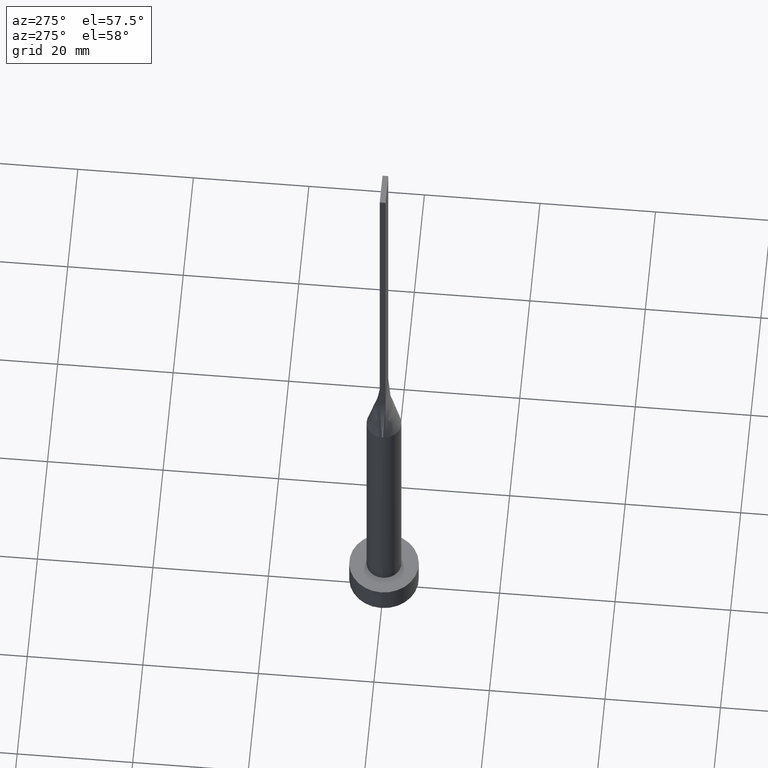
[diagram: clean part render]
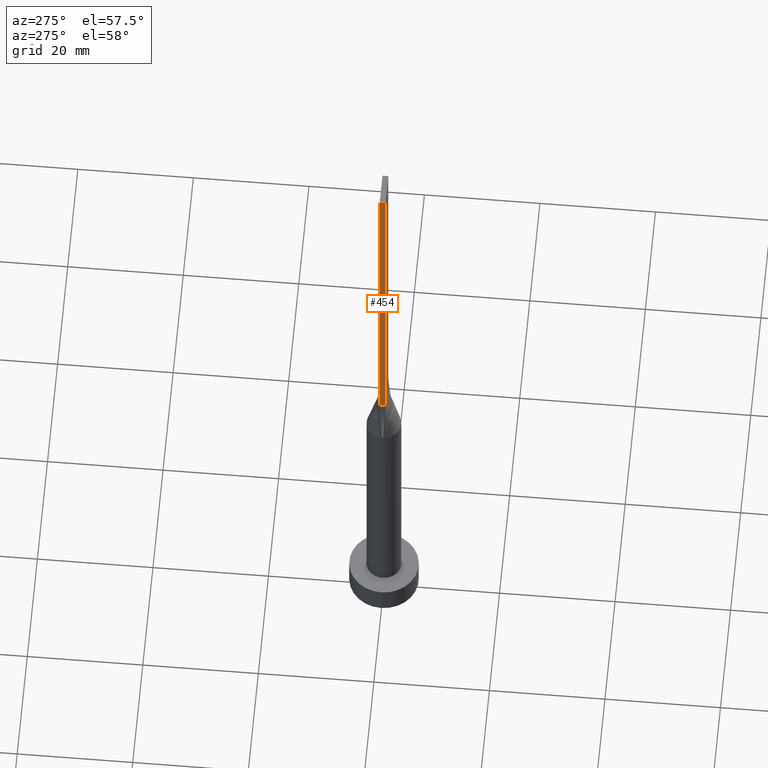
[diagram: same view with one face highlighted and labeled with its STEP entity id]
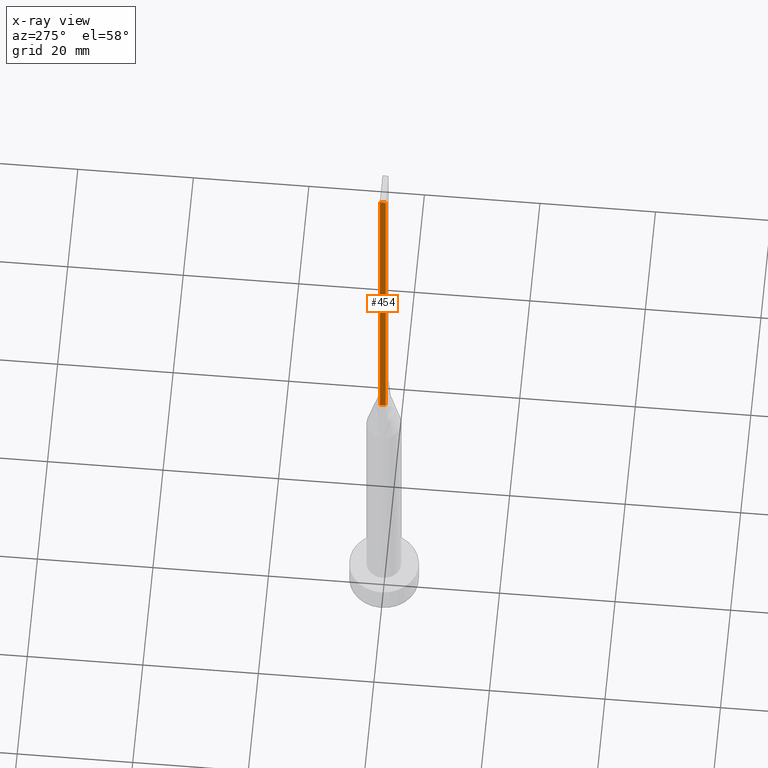
[diagram: x-ray of the same camera — body ghosted, the highlighted face saturated]
A machine part, auxiliary view. The second image highlights one B-rep face of the part: STEP entity #454.
The next image is the same camera in x-ray: the body ghosted, the highlighted face saturated — about 0% of this face is hidden behind the body in this view.
In plain terms, the highlighted planar face has unit normal (1, 0, -0).
Its self-contained STEP definition (entity closure, byte-faithful):
#36 = LINE ( 'NONE', #125, #249 ) ;
#88 = ORIENTED_EDGE ( 'NONE', *, *, #313, .F. ) ;
#92 = LINE ( 'NONE', #366, #578 ) ;
#93 = ORIENTED_EDGE ( 'NONE', *, *, #138, .T. ) ;
#100 = CARTESIAN_POINT ( 'NONE',  ( -2.750000000000000000, 0.5000000000000002220, 125.0000000000000000 ) ) ;
#101 = VERTEX_POINT ( 'NONE', #412 ) ;
#108 = LINE ( 'NONE', #100, #492 ) ;
#118 = ORIENTED_EDGE ( 'NONE', *, *, #276, .F. ) ;
#125 = CARTESIAN_POINT ( 'NONE',  ( -2.750000000000000000, 0.5000000000000002220, 60.00000000000000000 ) ) ;
#138 = EDGE_CURVE ( 'NONE', #183, #502, #36, .T. ) ;
#173 = CARTESIAN_POINT ( 'NONE',  ( -2.750000000000000000, -0.4999999999999994449, 60.00000000000000000 ) ) ;
#175 = CARTESIAN_POINT ( 'NONE',  ( -2.750000000000000000, -0.4999999999999994449, 125.0000000000000000 ) ) ;
#183 = VERTEX_POINT ( 'NONE', #524 ) ;
#197 = PLANE ( 'NONE',  #367 ) ;
#249 = VECTOR ( 'NONE', #328, 1000.000000000000000 ) ;
#276 = EDGE_CURVE ( 'NONE', #101, #502, #505, .T. ) ;
#304 = EDGE_CURVE ( 'NONE', #457, #183, #92, .T. ) ;
#310 = ORIENTED_EDGE ( 'NONE', *, *, #304, .T. ) ;
#313 = EDGE_CURVE ( 'NONE', #457, #101, #108, .T. ) ;
#328 = DIRECTION ( 'NONE',  ( 0.000000000000000000, -1.000000000000000000, 0.000000000000000000 ) ) ;
#339 = VECTOR ( 'NONE', #541, 1000.000000000000000 ) ;
#354 = EDGE_LOOP ( 'NONE', ( #93, #118, #88, #310 ) ) ;
#366 = CARTESIAN_POINT ( 'NONE',  ( -2.750000000000000000, 0.5000000000000002220, 125.0000000000000000 ) ) ;
#367 = AXIS2_PLACEMENT_3D ( 'NONE', #516, #369, #561 ) ;
#369 = DIRECTION ( 'NONE',  ( 1.000000000000000000, 0.000000000000000000, -0.000000000000000000 ) ) ;
#412 = CARTESIAN_POINT ( 'NONE',  ( -2.750000000000000000, -0.4999999999999994449, 125.0000000000000000 ) ) ;
#414 = FACE_OUTER_BOUND ( 'NONE', #354, .T. ) ;
#421 = CARTESIAN_POINT ( 'NONE',  ( -2.750000000000000000, 0.5000000000000002220, 125.0000000000000000 ) ) ;
#454 = ADVANCED_FACE ( 'NONE', ( #414 ), #197, .F. ) ;
#457 = VERTEX_POINT ( 'NONE', #421 ) ;
#459 = DIRECTION ( 'NONE',  ( -0.000000000000000000, -0.000000000000000000, -1.000000000000000000 ) ) ;
#473 = DIRECTION ( 'NONE',  ( 0.000000000000000000, -1.000000000000000000, 0.000000000000000000 ) ) ;
#492 = VECTOR ( 'NONE', #473, 1000.000000000000000 ) ;
#502 = VERTEX_POINT ( 'NONE', #173 ) ;
#505 = LINE ( 'NONE', #175, #339 ) ;
#516 = CARTESIAN_POINT ( 'NONE',  ( -2.750000000000000000, 0.5000000000000002220, 125.0000000000000000 ) ) ;
#524 = CARTESIAN_POINT ( 'NONE',  ( -2.750000000000000000, 0.5000000000000002220, 60.00000000000000000 ) ) ;
#541 = DIRECTION ( 'NONE',  ( -0.000000000000000000, -0.000000000000000000, -1.000000000000000000 ) ) ;
#561 = DIRECTION ( 'NONE',  ( -0.000000000000000000, 0.000000000000000000, -1.000000000000000000 ) ) ;
#578 = VECTOR ( 'NONE', #459, 1000.000000000000000 ) ;